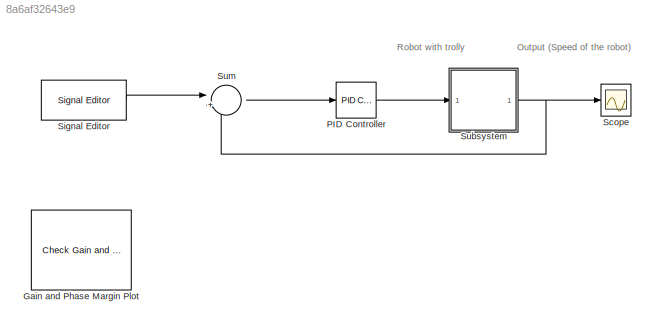
MODEL slx_8a6af32643e9
KIND model
CONFIG AbsTol = auto
CONFIG EnableMultiTasking = off
CONFIG FixedStep = auto
CONFIG MaxStep = auto
CONFIG MinStep = auto
CONFIG RelTol = 1e-3
CONFIG SampleTimeConstraint = Unconstrained
CONFIG SolverName = VariableStepAuto
CONFIG StartTime = 0.0
CONFIG StopTime = 1000
BLOCK [Reference] Gain and Phase Margin Plot  REF=slctrl_linear/Check Gain and Phase Margins
  InstantiateOnLoad = on
  LibrarySourceBlock = slctrlblks/Linear Analysis Plots/Gain and Phase Margin Plot
  SourceBlock = slctrl_linear/Check Gain and Phase Margins
  SourceType = Checks_Margins
BLOCK [Reference] PID Controller  REF=slpidlib/PID Controller
  LibrarySourceBlock = simulink/Continuous/PID Controller
  SourceBlock = slpidlib/PID Controller
  SourceType = PID 1dof
BLOCK [Scope] Scope
  Floating = off
  NumInputPorts = 1
  ScopeSpecificationString = Simulink.scopes.TimeScopeBlockCfg('CurrentConfiguration', extmgr.ConfigurationSet(extmgr.Configuration('Core','General UI',true),extmgr.Configuration('Core','Source UI',true),extmgr.Configuration('Sources','WiredSimulink',true),extmgr.Configuration('Visuals','Time Domain',true,'SerializedDisplays',{struct('MinYLimReal','-0.30235','MaxYLimReal','1.30666','YLabelReal','','MinYLimMag','0.00000','MaxY...<+1391ch>
BLOCK [Reference] Signal Editor  REF=SignalEditorBlockLib/Signal Editor
  LibrarySourceBlock = simulink/Sources/Signal Editor
  SourceBlock = SignalEditorBlockLib/Signal Editor
  SourceType = SignalEditor
  UserDataPersistent = on
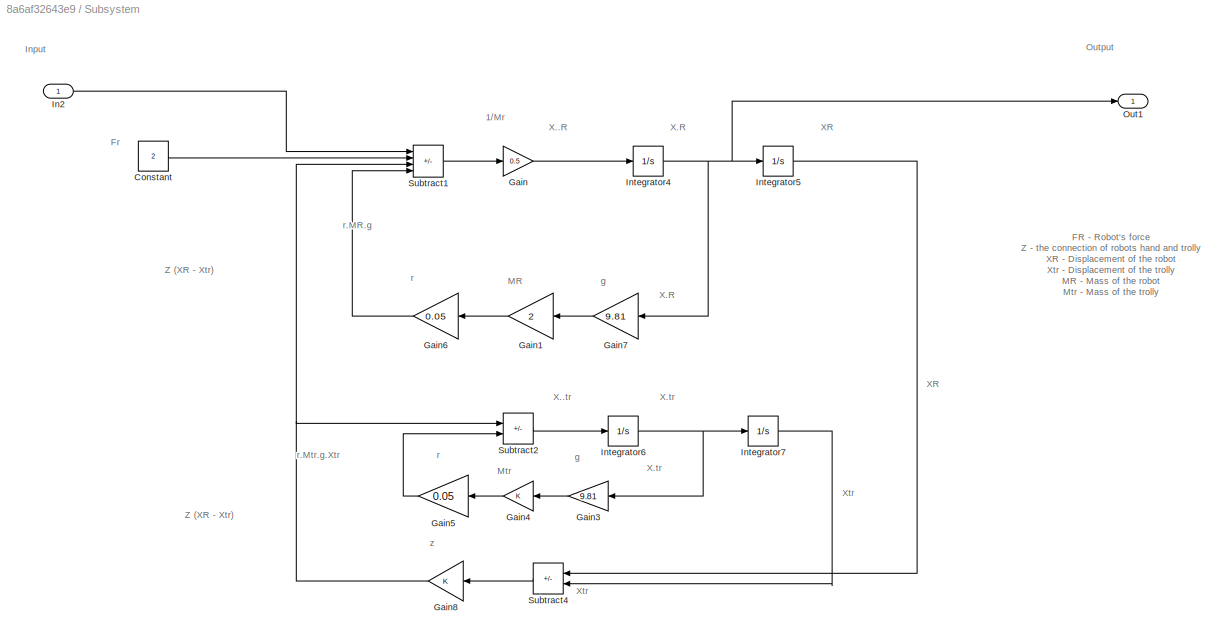
BLOCK [SubSystem] Subsystem
BLOCK [Constant] Subsystem/Constant
  Value = 2
BLOCK [Gain] Subsystem/Gain
  Gain = 0.5
BLOCK [Gain] Subsystem/Gain1
  Gain = 2
BLOCK [Gain] Subsystem/Gain3
  Gain = 9.81
BLOCK [Gain] Subsystem/Gain4
BLOCK [Gain] Subsystem/Gain5
  Gain = 0.05
BLOCK [Gain] Subsystem/Gain6
  Gain = 0.05
BLOCK [Gain] Subsystem/Gain7
  Gain = 9.81
BLOCK [Gain] Subsystem/Gain8
BLOCK [Inport] Subsystem/In2
BLOCK [Integrator] Subsystem/Integrator4
BLOCK [Integrator] Subsystem/Integrator5
BLOCK [Integrator] Subsystem/Integrator6
BLOCK [Integrator] Subsystem/Integrator7
BLOCK [Outport] Subsystem/Out1
BLOCK [Sum] Subsystem/Subtract1
  IconShape = rectangular
  Inputs = ++--
BLOCK [Sum] Subsystem/Subtract2
  IconShape = rectangular
  Inputs = +-
BLOCK [Sum] Subsystem/Subtract4
  IconShape = rectangular
  Inputs = +-
BLOCK [Sum] Sum
  Inputs = |+-
ANNOTATION (root): Output (Speed of the robot)
ANNOTATION (root): Robot with trolly
ANNOTATION Subsystem: X .. tr
ANNOTATION Subsystem: X . tr
ANNOTATION Subsystem: X.. R
ANNOTATION Subsystem: X. R
ANNOTATION Subsystem: X R
ANNOTATION Subsystem: 1/Mr
ANNOTATION Subsystem: Fr
ANNOTATION Subsystem: M R
ANNOTATION Subsystem: X. tr
ANNOTATION Subsystem: Xtr
ANNOTATION Subsystem: Z (X R - X tr )
ANNOTATION Subsystem: g
ANNOTATION Subsystem: F R - Robot's force Z - the connection of robots hand and trolly X R - Displacement of the robot X tr - Displacement of the trolly M R - Mass of the robot M tr - Mass of the trolly r - rollig friction cofficient g - Gravitation constant
ANNOTATION Subsystem: M tr
ANNOTATION Subsystem: r
ANNOTATION Subsystem: z
ANNOTATION Subsystem: Input
ANNOTATION Subsystem: Output
ANNOTATION Subsystem: r. M tr .g. Xtr
ANNOTATION Subsystem: r. M R .g
LINE PID Controller:1 -> Subsystem:1
LINE Signal Editor:1 -> Sum:1
LINE Subsystem/Constant:1 -> Subsystem/Subtract1:2
LINE Subsystem/Gain1:1 -> Subsystem/Gain6:1
LINE Subsystem/Gain3:1 -> Subsystem/Gain4:1
LINE Subsystem/Gain4:1 -> Subsystem/Gain5:1
LINE Subsystem/Gain5:1 -> Subsystem/Subtract2:2
LINE Subsystem/Gain6:1 -> Subsystem/Subtract1:4
LINE Subsystem/Gain7:1 -> Subsystem/Gain1:1
NET Subsystem/Gain8:1 -> Subsystem/Subtract1:3, Subsystem/Subtract2:1
LINE Subsystem/Gain:1 -> Subsystem/Integrator4:1
LINE Subsystem/In2:1 -> Subsystem/Subtract1:1
NET Subsystem/Integrator4:1 -> Subsystem/Gain7:1, Subsystem/Integrator5:1, Subsystem/Out1:1
LINE Subsystem/Integrator5:1 -> Subsystem/Subtract4:1
NET Subsystem/Integrator6:1 -> Subsystem/Gain3:1, Subsystem/Integrator7:1
LINE Subsystem/Integrator7:1 -> Subsystem/Subtract4:2
LINE Subsystem/Subtract1:1 -> Subsystem/Gain:1
LINE Subsystem/Subtract2:1 -> Subsystem/Integrator6:1
LINE Subsystem/Subtract4:1 -> Subsystem/Gain8:1
NET Subsystem:1 -> Scope:1, Sum:2
LINE Sum:1 -> PID Controller:1
note: NET lines group one-source signal fan-out (src -> all destinations, sorted); 1:1 wires keep LINE
